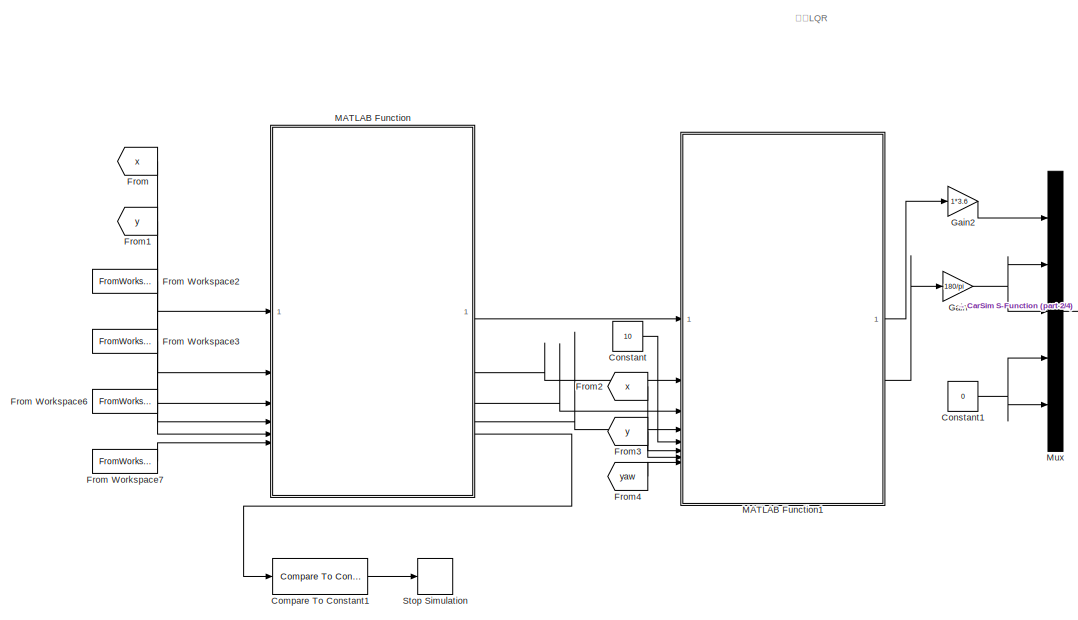
[diagram: root canvas - part 1/4, top left region]
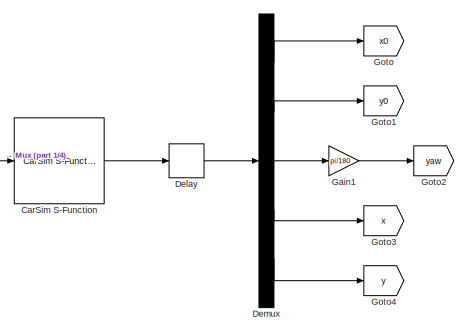
[diagram: root canvas - part 2/4, top right region]
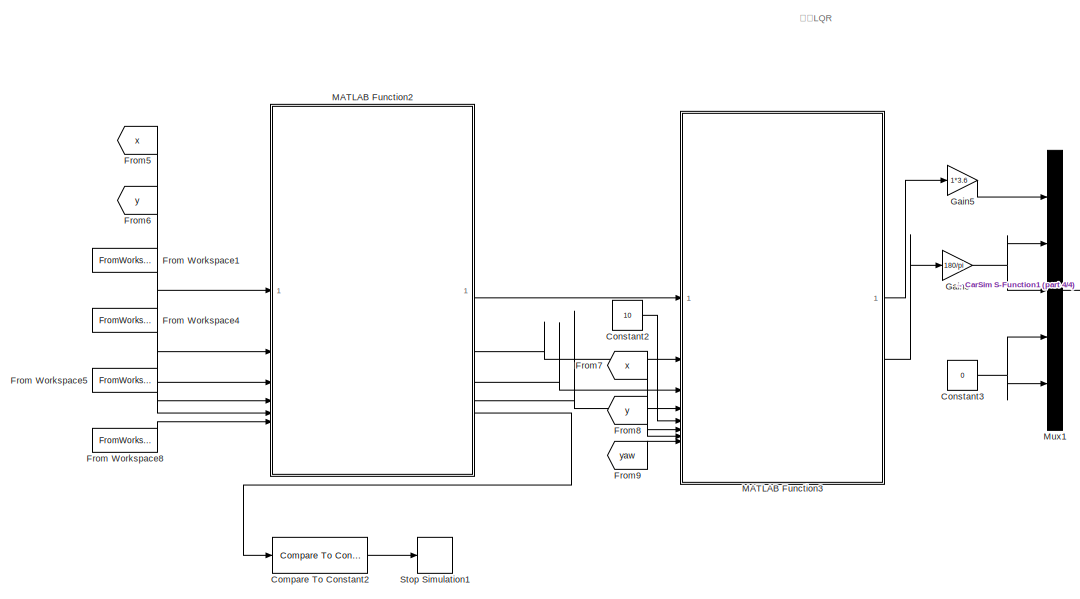
[diagram: root canvas - part 3/4, bottom center region]
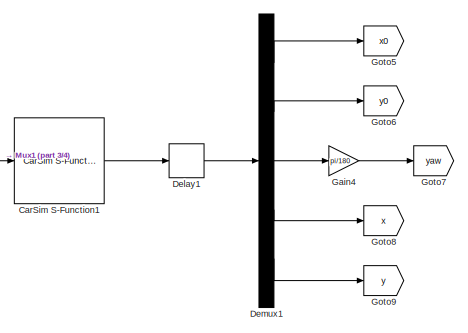
[diagram: root canvas - part 4/4, bottom right region]
MODEL slx_203a9a9ddbf2
KIND model
CONFIG AbsTol = auto
CONFIG EnableMultiTasking = off
CONFIG FixedStep = auto
CONFIG MaxStep = auto
CONFIG MinStep = auto
CONFIG RelTol = 1e-3
CONFIG SampleTimeConstraint = Unconstrained
CONFIG SolverName = VariableStepAuto
CONFIG StartTime = 0.0
CONFIG StopTime = 150
BLOCK [Reference] CarSim S-Function  REF=Solver_SF/CarSim S-Function
  Priority = 1
  SourceBlock = Solver_SF/CarSim S-Function
  SourceProductName = CarSim S-Function
  SourceType = Vehicle math model library
BLOCK [Reference] CarSim S-Function1  REF=Solver_SF/CarSim S-Function
  Commented = on
  Priority = 1
  SourceBlock = Solver_SF/CarSim S-Function
  SourceProductName = CarSim S-Function
  SourceType = Vehicle math model library
BLOCK [Reference] Compare To Constant1  REF=simulink/Logic and Bit
Operations/Compare
To Constant
  SourceBlock = simulink/Logic and Bit\nOperations/Compare\nTo Constant
  SourceType = Compare To Constant
BLOCK [Reference] Compare To Constant2  REF=simulink/Logic and Bit
Operations/Compare
To Constant
  Commented = on
  SourceBlock = simulink/Logic and Bit\nOperations/Compare\nTo Constant
  SourceType = Compare To Constant
BLOCK [Constant] Constant
  Value = 10
BLOCK [Constant] Constant1
  Value = 0
BLOCK [Constant] Constant2
  Commented = on
  Value = 10
BLOCK [Constant] Constant3
  Commented = on
  Value = 0
BLOCK [Delay] Delay
  DelayLength = 1
  InputPortMap = u0
BLOCK [Delay] Delay1
  Commented = on
  DelayLength = 1
  InputPortMap = u0
BLOCK [Demux] Demux
  Outputs = 5
BLOCK [Demux] Demux1
  Commented = on
  Outputs = 5
BLOCK [From] From
  GotoTag = x
BLOCK [FromWorkspace] From Workspace1
  Commented = on
  VariableName = cx
BLOCK [FromWorkspace] From Workspace2
  VariableName = cx
BLOCK [FromWorkspace] From Workspace3
  VariableName = cy
BLOCK [FromWorkspace] From Workspace4
  Commented = on
  VariableName = cy
BLOCK [FromWorkspace] From Workspace5
  Commented = on
  VariableName = r_k
BLOCK [FromWorkspace] From Workspace6
  VariableName = r_k
BLOCK [FromWorkspace] From Workspace7
  VariableName = r_yaw
BLOCK [FromWorkspace] From Workspace8
  Commented = on
  VariableName = r_yaw
BLOCK [From] From1
  GotoTag = y
BLOCK [From] From2
  GotoTag = x
BLOCK [From] From3
  GotoTag = y
BLOCK [From] From4
  GotoTag = yaw
BLOCK [From] From5
  Commented = on
  GotoTag = x
BLOCK [From] From6
  Commented = on
  GotoTag = y
BLOCK [From] From7
  Commented = on
  GotoTag = x
BLOCK [From] From8
  Commented = on
  GotoTag = y
BLOCK [From] From9
  Commented = on
  GotoTag = yaw
BLOCK [Gain] Gain
  Gain = 180/pi
BLOCK [Gain] Gain1
  Gain = pi/180
BLOCK [Gain] Gain2
  Gain = 1*3.6
BLOCK [Gain] Gain3
  Commented = on
  Gain = 180/pi
BLOCK [Gain] Gain4
  Commented = on
  Gain = pi/180
BLOCK [Gain] Gain5
  Commented = on
  Gain = 1*3.6
BLOCK [Goto] Goto
  GotoTag = x0
BLOCK [Goto] Goto1
  GotoTag = y0
BLOCK [Goto] Goto2
  GotoTag = yaw
BLOCK [Goto] Goto3
  GotoTag = x
BLOCK [Goto] Goto4
  GotoTag = y
BLOCK [Goto] Goto5
  Commented = on
  GotoTag = x0
BLOCK [Goto] Goto6
  Commented = on
  GotoTag = y0
BLOCK [Goto] Goto7
  Commented = on
  GotoTag = yaw
BLOCK [Goto] Goto8
  Commented = on
  GotoTag = x
BLOCK [Goto] Goto9
  Commented = on
  GotoTag = y
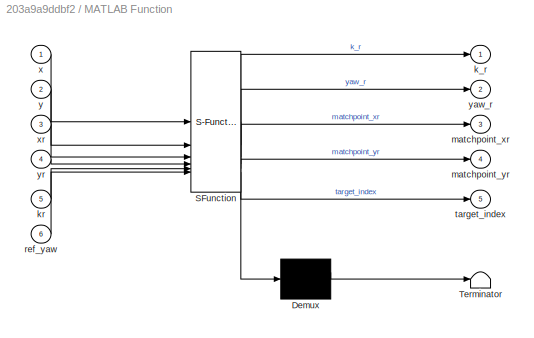
BLOCK [SubSystem] MATLAB Function
  ErrorFcn = Stateflow.Translate.translate
  LibrarySourceBlock = simulink/User-Defined\nFunctions/MATLAB Function
  PermitHierarchicalResolution = ExplicitOnly
  SFBlockType = MATLAB Function
  TreatAsAtomicUnit = on
BLOCK [Demux] MATLAB Function/ Demux 
  Outputs = 1
BLOCK [S-Function] MATLAB Function/ SFunction 
  EnableBusSupport = on
  FunctionName = sf_sfun
  PortCounts = [6 6]
  SFcnIsStateOwnerBlock = off
  SFunctionDeploymentMode = off
  Tag = Stateflow S-Function 2
BLOCK [Terminator] MATLAB Function/ Terminator 
BLOCK [Outport] MATLAB Function/k_r
BLOCK [Inport] MATLAB Function/kr
  Port = 5
BLOCK [Outport] MATLAB Function/matchpoint_xr
  Port = 3
BLOCK [Outport] MATLAB Function/matchpoint_yr
  Port = 4
BLOCK [Inport] MATLAB Function/ref_yaw
  Port = 6
BLOCK [Outport] MATLAB Function/target_index
  Port = 5
BLOCK [Inport] MATLAB Function/x
BLOCK [Inport] MATLAB Function/xr
  Port = 3
BLOCK [Inport] MATLAB Function/y
  Port = 2
BLOCK [Outport] MATLAB Function/yaw_r
  Port = 2
BLOCK [Inport] MATLAB Function/yr
  Port = 4
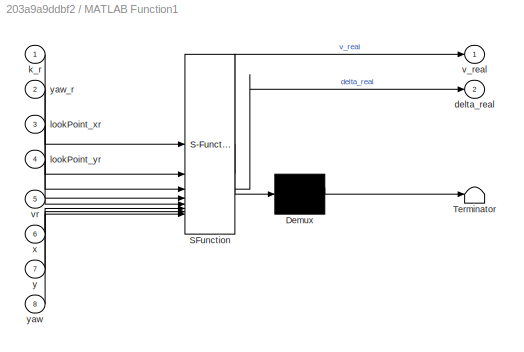
BLOCK [SubSystem] MATLAB Function1
  ErrorFcn = Stateflow.Translate.translate
  LibrarySourceBlock = simulink/User-Defined\nFunctions/MATLAB Function
  PermitHierarchicalResolution = ExplicitOnly
  SFBlockType = MATLAB Function
  TreatAsAtomicUnit = on
BLOCK [Demux] MATLAB Function1/ Demux 
  Outputs = 1
BLOCK [S-Function] MATLAB Function1/ SFunction 
  EnableBusSupport = on
  FunctionName = sf_sfun
  PortCounts = [8 3]
  SFcnIsStateOwnerBlock = off
  SFunctionDeploymentMode = off
  Tag = Stateflow S-Function 1
BLOCK [Terminator] MATLAB Function1/ Terminator 
BLOCK [Outport] MATLAB Function1/delta_real
  Port = 2
BLOCK [Inport] MATLAB Function1/k_r
BLOCK [Inport] MATLAB Function1/lookPoint_xr
  Port = 3
BLOCK [Inport] MATLAB Function1/lookPoint_yr
  Port = 4
BLOCK [Outport] MATLAB Function1/v_real
BLOCK [Inport] MATLAB Function1/vr
  Port = 5
BLOCK [Inport] MATLAB Function1/x
  Port = 6
BLOCK [Inport] MATLAB Function1/y
  Port = 7
BLOCK [Inport] MATLAB Function1/yaw
  Port = 8
BLOCK [Inport] MATLAB Function1/yaw_r
  Port = 2
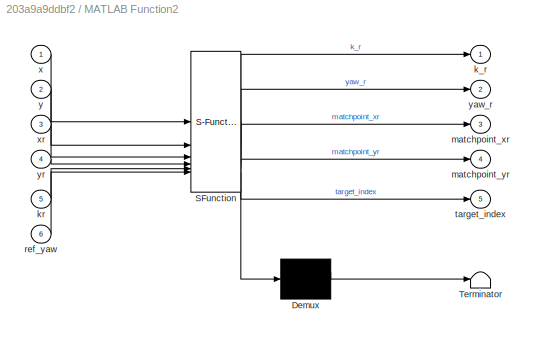
BLOCK [SubSystem] MATLAB Function2
  Commented = on
  ErrorFcn = Stateflow.Translate.translate
  LibrarySourceBlock = simulink/User-Defined\nFunctions/MATLAB Function
  PermitHierarchicalResolution = ExplicitOnly
  SFBlockType = MATLAB Function
  TreatAsAtomicUnit = on
BLOCK [Demux] MATLAB Function2/ Demux 
  Outputs = 1
BLOCK [S-Function] MATLAB Function2/ SFunction 
  EnableBusSupport = on
  FunctionName = sf_sfun
  PortCounts = [6 6]
  SFcnIsStateOwnerBlock = off
  SFunctionDeploymentMode = off
  Tag = Stateflow S-Function 3
BLOCK [Terminator] MATLAB Function2/ Terminator 
BLOCK [Outport] MATLAB Function2/k_r
BLOCK [Inport] MATLAB Function2/kr
  Port = 5
BLOCK [Outport] MATLAB Function2/matchpoint_xr
  Port = 3
BLOCK [Outport] MATLAB Function2/matchpoint_yr
  Port = 4
BLOCK [Inport] MATLAB Function2/ref_yaw
  Port = 6
BLOCK [Outport] MATLAB Function2/target_index
  Port = 5
BLOCK [Inport] MATLAB Function2/x
BLOCK [Inport] MATLAB Function2/xr
  Port = 3
BLOCK [Inport] MATLAB Function2/y
  Port = 2
BLOCK [Outport] MATLAB Function2/yaw_r
  Port = 2
BLOCK [Inport] MATLAB Function2/yr
  Port = 4
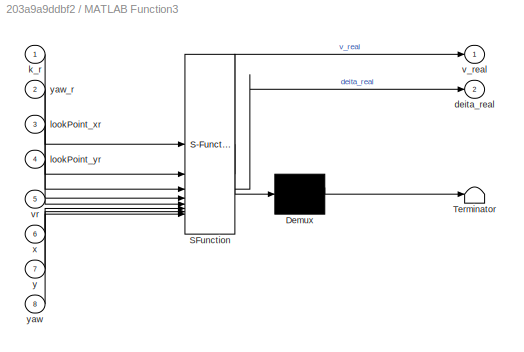
BLOCK [SubSystem] MATLAB Function3
  Commented = on
  ErrorFcn = Stateflow.Translate.translate
  LibrarySourceBlock = simulink/User-Defined\nFunctions/MATLAB Function
  PermitHierarchicalResolution = ExplicitOnly
  SFBlockType = MATLAB Function
  TreatAsAtomicUnit = on
BLOCK [Demux] MATLAB Function3/ Demux 
  Outputs = 1
BLOCK [S-Function] MATLAB Function3/ SFunction 
  EnableBusSupport = on
  FunctionName = sf_sfun
  PortCounts = [8 3]
  SFcnIsStateOwnerBlock = off
  SFunctionDeploymentMode = off
  Tag = Stateflow S-Function 4
BLOCK [Terminator] MATLAB Function3/ Terminator 
BLOCK [Outport] MATLAB Function3/deita_real
  Port = 2
BLOCK [Inport] MATLAB Function3/k_r
BLOCK [Inport] MATLAB Function3/lookPoint_xr
  Port = 3
BLOCK [Inport] MATLAB Function3/lookPoint_yr
  Port = 4
BLOCK [Outport] MATLAB Function3/v_real
BLOCK [Inport] MATLAB Function3/vr
  Port = 5
BLOCK [Inport] MATLAB Function3/x
  Port = 6
BLOCK [Inport] MATLAB Function3/y
  Port = 7
BLOCK [Inport] MATLAB Function3/yaw
  Port = 8
BLOCK [Inport] MATLAB Function3/yaw_r
  Port = 2
BLOCK [Mux] Mux
  DisplayOption = bar
  Inputs = 5
BLOCK [Mux] Mux1
  Commented = on
  DisplayOption = bar
  Inputs = 5
BLOCK [Stop] Stop Simulation
BLOCK [Stop] Stop Simulation1
  Commented = on
ANNOTATION (root): 连续LQR
ANNOTATION (root): 离散LQR
LINE CarSim S-Function1:1 -> Delay1:1
LINE CarSim S-Function:1 -> Delay:1
LINE Compare To Constant1:1 -> Stop Simulation:1
LINE Compare To Constant2:1 -> Stop Simulation1:1
NET Constant1:1 -> Mux:4, Mux:5
LINE Constant2:1 -> MATLAB Function3:5
NET Constant3:1 -> Mux1:4, Mux1:5
LINE Constant:1 -> MATLAB Function1:5
LINE Delay1:1 -> Demux1:1
LINE Delay:1 -> Demux:1
LINE Demux1:1 -> Goto5:1
LINE Demux1:2 -> Goto6:1
LINE Demux1:3 -> Gain4:1
LINE Demux1:4 -> Goto8:1
LINE Demux1:5 -> Goto9:1
LINE Demux:1 -> Goto:1
LINE Demux:2 -> Goto1:1
LINE Demux:3 -> Gain1:1
LINE Demux:4 -> Goto3:1
LINE Demux:5 -> Goto4:1
LINE From Workspace1:1 -> MATLAB Function2:3
LINE From Workspace2:1 -> MATLAB Function:3
LINE From Workspace3:1 -> MATLAB Function:4
LINE From Workspace4:1 -> MATLAB Function2:4
LINE From Workspace5:1 -> MATLAB Function2:5
LINE From Workspace6:1 -> MATLAB Function:5
LINE From Workspace7:1 -> MATLAB Function:6
LINE From Workspace8:1 -> MATLAB Function2:6
LINE From1:1 -> MATLAB Function:2
LINE From2:1 -> MATLAB Function1:6
LINE From3:1 -> MATLAB Function1:7
LINE From4:1 -> MATLAB Function1:8
LINE From5:1 -> MATLAB Function2:1
LINE From6:1 -> MATLAB Function2:2
LINE From7:1 -> MATLAB Function3:6
LINE From8:1 -> MATLAB Function3:7
LINE From9:1 -> MATLAB Function3:8
LINE From:1 -> MATLAB Function:1
LINE Gain1:1 -> Goto2:1
LINE Gain2:1 -> Mux:1
NET Gain3:1 -> Mux1:2, Mux1:3
LINE Gain4:1 -> Goto7:1
LINE Gain5:1 -> Mux1:1
NET Gain:1 -> Mux:2, Mux:3
LINE MATLAB Function1:1 -> Gain2:1
LINE MATLAB Function1:2 -> Gain:1
LINE MATLAB Function2:1 -> MATLAB Function3:1
LINE MATLAB Function2:2 -> MATLAB Function3:2
LINE MATLAB Function2:3 -> MATLAB Function3:3
LINE MATLAB Function2:4 -> MATLAB Function3:4
LINE MATLAB Function2:5 -> Compare To Constant2:1
LINE MATLAB Function3:1 -> Gain5:1
LINE MATLAB Function3:2 -> Gain3:1
LINE MATLAB Function:1 -> MATLAB Function1:1
LINE MATLAB Function:2 -> MATLAB Function1:2
LINE MATLAB Function:3 -> MATLAB Function1:3
LINE MATLAB Function:4 -> MATLAB Function1:4
LINE MATLAB Function:5 -> Compare To Constant1:1
LINE Mux1:1 -> CarSim S-Function1:1
LINE Mux:1 -> CarSim S-Function:1
note: NET lines group one-source signal fan-out (src -> all destinations, sorted); 1:1 wires keep LINE
CHART MATLAB Function1 states=1 transitions=1
  STATE_LABEL 'eML_blk_kernel()'
  STATE_LABEL 'SCRIPT:\nfunction [v_real, delta_real] = calculate_delta_f(k_r,yaw_r,lookPoint_xr, lookPoint_yr,vr,x,y,yaw)\n    L=2.6;                           %车长\n    r_Delta = atan(L*k_r);           %参考的前轮转角，有固定公式\n    \n    x_error  = x - lookPoint_xr;     %x方向误差\n    y_error = y - lookPoint_yr;      %y方向误差\n    yaw_error =  yaw - yaw_r;        %横摆角误差\n    e_X=[x_error;y_error;yaw_error]; %状态方程中的状态，即 x误差,y误差,横摆角误差\n...<+1226ch>'
CHART MATLAB Function states=1 transitions=1
  STATE_LABEL 'eML_blk_kernel()'
  STATE_LABEL 'SCRIPT:\nfunction [k_r, yaw_r, matchpoint_xr, matchpoint_yr, target_index] = calculate_matchpoint(x,y,xr,yr,kr,ref_yaw)\n    total_point = length(xr);\n    min_distance = (xr(1) - x)^2 + (yr(1) - y)^2;\n    min_index = 0;\n    for i = 1:total_point\n        distance = (xr(i) - x)^2 + (yr(i) - y)^2;\n        if distance < min_distance\n           min_distance = distance;\n           min_index = i;\n        e...<+238ch>'
CHART MATLAB Function2 states=1 transitions=1
  STATE_LABEL 'eML_blk_kernel()'
  STATE_LABEL 'SCRIPT:\nfunction [k_r, yaw_r, matchpoint_xr, matchpoint_yr, target_index] = calculate_matchpoint(x,y,xr,yr,kr,ref_yaw)\n    total_point = length(xr);\n    min_distance = (xr(1) - x)^2 + (yr(1) - y)^2;\n    min_index = 0;\n    for i = 1:total_point\n        distance = (xr(i) - x)^2 + (yr(i) - y)^2;\n        if distance < min_distance\n           min_distance = distance;\n           min_index = i;\n        e...<+238ch>'
CHART MATLAB Function3 states=1 transitions=1
  STATE_LABEL 'eML_blk_kernel()'
  STATE_LABEL 'SCRIPT:\nfunction [v_real,deita_real] = findPoint(k_r,yaw_r,lookPoint_xr, lookPoint_yr,vr,x,y,yaw)\n\nL=2.6;                              %车长\nr_Delta = atan(L*k_r);              %参考的前轮转角\n\nx_error  = x - lookPoint_xr;        %x方向误差\ny_error = y - lookPoint_yr;         %y方向误差\nyaw_error =  yaw - yaw_r;           %横摆角误差\ne_X=[x_error;y_error;yaw_error];    %状态方程中的状态\n\n% X=AX+Bu 由状态方程系数矩阵\nA = [0,  0,  -vr*si...<+663ch>'
CHART  states=0 transitions=0
CHART  states=0 transitions=0
CHART  states=0 transitions=0
CHART  states=0 transitions=0
